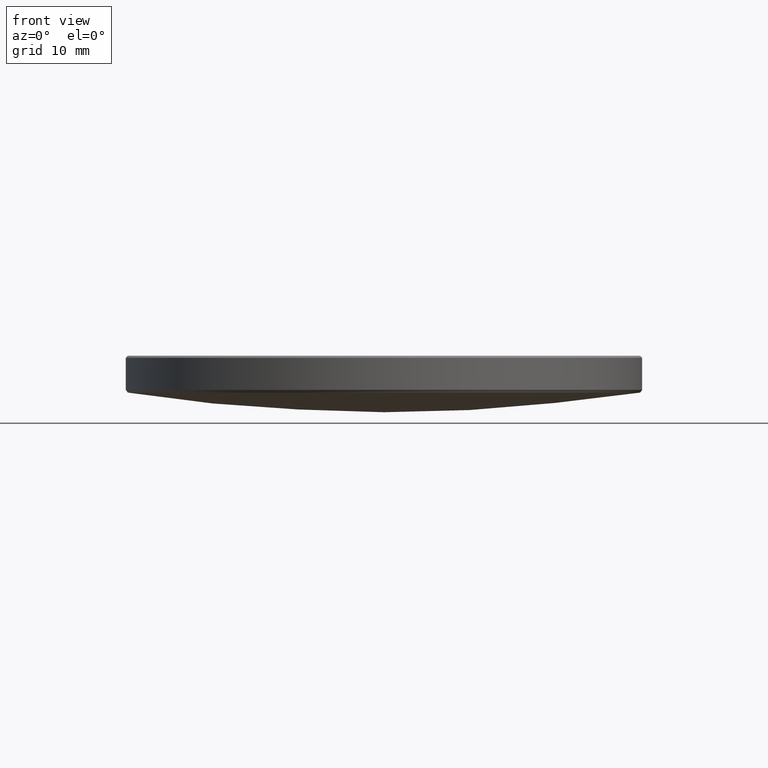
[diagram: clean part render]
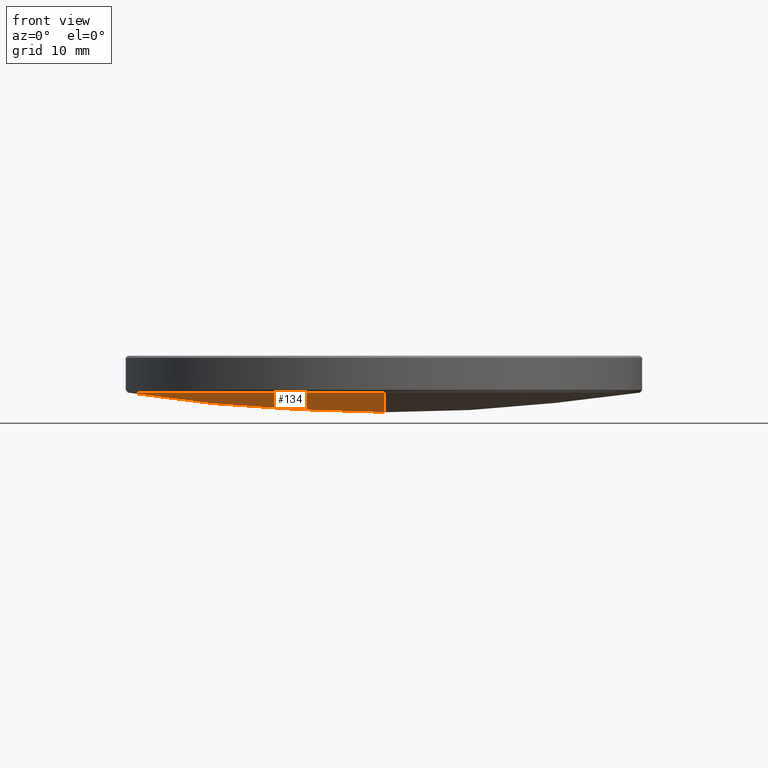
[diagram: same view with one face highlighted and labeled with its STEP entity id]
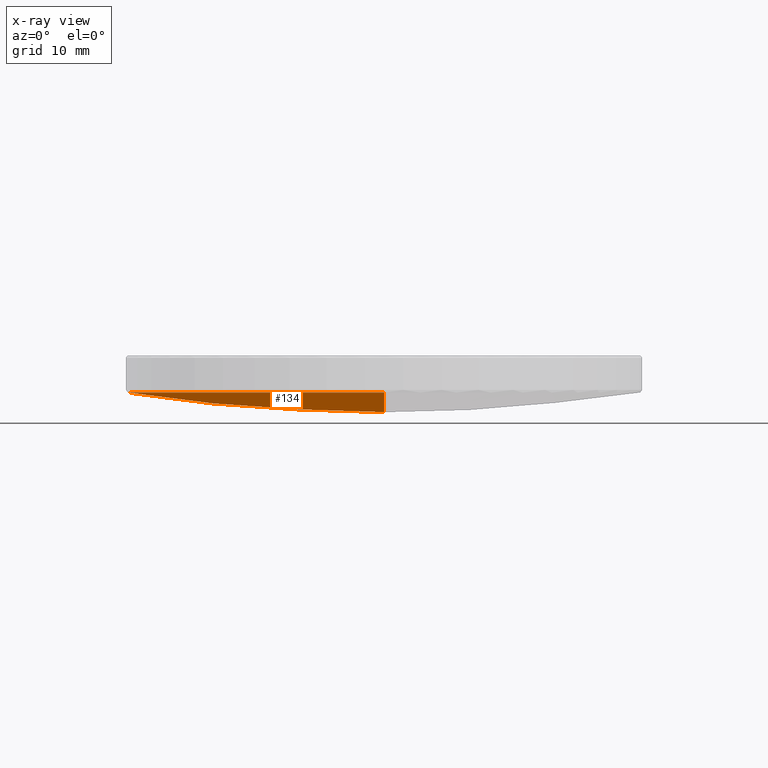
[diagram: x-ray of the same camera — body ghosted, the highlighted face saturated]
A machine part, front view. The second image highlights one B-rep face of the part: STEP entity #134.
The next image is the same camera in x-ray: the body ghosted, the highlighted face saturated — about 0% of this face is hidden behind the body in this view.
In plain terms, the highlighted spherical surface has radius 165.37 mm.
Its self-contained STEP definition (entity closure, byte-faithful):
#22 = EDGE_CURVE ( 'NONE', #317, #118, #189, .T. ) ;
#35 = EDGE_LOOP ( 'NONE', ( #165, #140, #215, #98 ) ) ;
#42 = AXIS2_PLACEMENT_3D ( 'NONE', #170, #267, #318 ) ;
#47 = CARTESIAN_POINT ( 'NONE',  ( -25.20247402996205821, 3.098507892486505665E-15, 13.96941892127251350 ) ) ;
#48 = DIRECTION ( 'NONE',  ( 0.000000000000000000, 0.000000000000000000, -1.000000000000000000 ) ) ;
#52 = SPHERICAL_SURFACE ( 'NONE', #323, 165.3700000000000045 ) ;
#56 = AXIS2_PLACEMENT_3D ( 'NONE', #122, #177, #321 ) ;
#83 = EDGE_CURVE ( 'NONE', #168, #319, #299, .T. ) ;
#98 = ORIENTED_EDGE ( 'NONE', *, *, #22, .T. ) ;
#104 = FACE_OUTER_BOUND ( 'NONE', #35, .T. ) ;
#105 = DIRECTION ( 'NONE',  ( -1.000000000000000000, 0.000000000000000000, 0.000000000000000000 ) ) ;
#118 = VERTEX_POINT ( 'NONE', #330 ) ;
#122 = CARTESIAN_POINT ( 'NONE',  ( 0.000000000000000000, 0.000000000000000000, 177.4077014708915385 ) ) ;
#134 = ADVANCED_FACE ( 'NONE', ( #104 ), #52, .T. ) ;
#140 = ORIENTED_EDGE ( 'NONE', *, *, #83, .T. ) ;
#152 = CIRCLE ( 'NONE', #309, 25.20247402996205821 ) ;
#157 = CARTESIAN_POINT ( 'NONE',  ( 0.000000000000000000, 0.000000000000000000, 177.4077014708915385 ) ) ;
#161 = CIRCLE ( 'NONE', #295, 165.3700000000000045 ) ;
#165 = ORIENTED_EDGE ( 'NONE', *, *, #233, .F. ) ;
#167 = EDGE_CURVE ( 'NONE', #319, #317, #152, .T. ) ;
#168 = VERTEX_POINT ( 'NONE', #257 ) ;
#170 = CARTESIAN_POINT ( 'NONE',  ( 0.000000000000000000, 0.000000000000000000, 13.96941892127251350 ) ) ;
#177 = DIRECTION ( 'NONE',  ( -1.000000000000000000, 1.224646799147353207E-16, 0.000000000000000000 ) ) ;
#189 = CIRCLE ( 'NONE', #42, 25.20247402996205821 ) ;
#203 = DIRECTION ( 'NONE',  ( 1.000000000000000000, -0.000000000000000000, 0.000000000000000000 ) ) ;
#205 = DIRECTION ( 'NONE',  ( 0.000000000000000000, 1.000000000000000000, 0.000000000000000000 ) ) ;
#215 = ORIENTED_EDGE ( 'NONE', *, *, #167, .T. ) ;
#226 = CARTESIAN_POINT ( 'NONE',  ( 0.000000000000000000, 0.000000000000000000, 13.96941892127251350 ) ) ;
#228 = CARTESIAN_POINT ( 'NONE',  ( -3.086412915138717110E-15, -25.20247402996192321, 13.96941892127251350 ) ) ;
#233 = EDGE_CURVE ( 'NONE', #168, #118, #161, .T. ) ;
#251 = DIRECTION ( 'NONE',  ( 0.000000000000000000, 0.000000000000000000, -1.000000000000000000 ) ) ;
#257 = CARTESIAN_POINT ( 'NONE',  ( 0.000000000000000000, 1.012599205874989125E-14, 12.03770147089153220 ) ) ;
#267 = DIRECTION ( 'NONE',  ( 0.000000000000000000, 0.000000000000000000, -1.000000000000000000 ) ) ;
#278 = DIRECTION ( 'NONE',  ( 1.000000000000000000, 0.000000000000000000, 0.000000000000000000 ) ) ;
#295 = AXIS2_PLACEMENT_3D ( 'NONE', #327, #203, #251 ) ;
#299 = CIRCLE ( 'NONE', #56, 165.3700000000000045 ) ;
#309 = AXIS2_PLACEMENT_3D ( 'NONE', #226, #48, #278 ) ;
#317 = VERTEX_POINT ( 'NONE', #47 ) ;
#318 = DIRECTION ( 'NONE',  ( 1.000000000000000000, 0.000000000000000000, 0.000000000000000000 ) ) ;
#319 = VERTEX_POINT ( 'NONE', #228 ) ;
#321 = DIRECTION ( 'NONE',  ( -1.224646799147353207E-16, -1.000000000000000000, 0.000000000000000000 ) ) ;
#323 = AXIS2_PLACEMENT_3D ( 'NONE', #157, #105, #205 ) ;
#327 = CARTESIAN_POINT ( 'NONE',  ( 0.000000000000000000, 0.000000000000000000, 177.4077014708915385 ) ) ;
#330 = CARTESIAN_POINT ( 'NONE',  ( 0.000000000000000000, 25.20247402996192321, 13.96941892127251350 ) ) ;